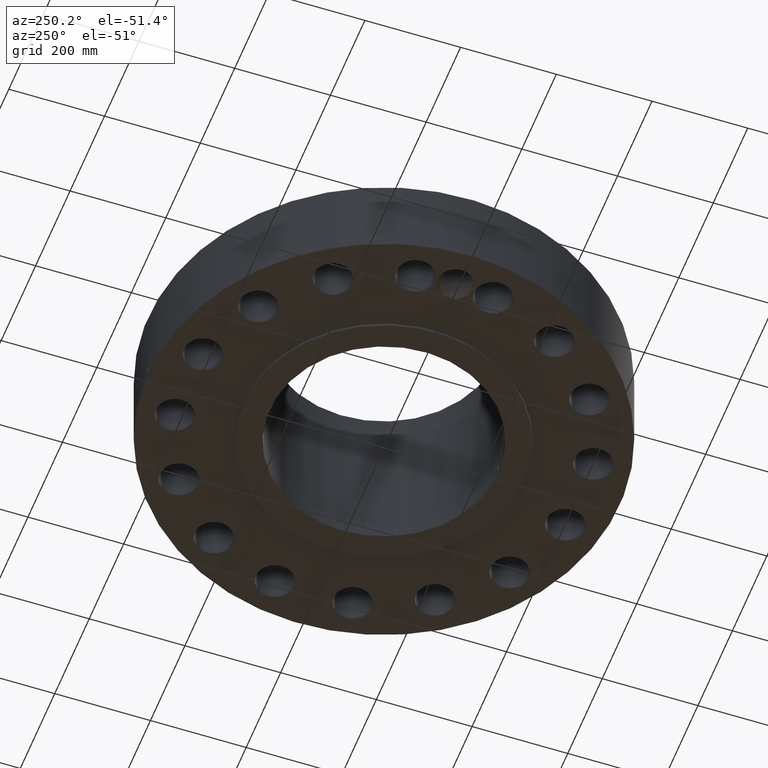
[diagram: clean part render]
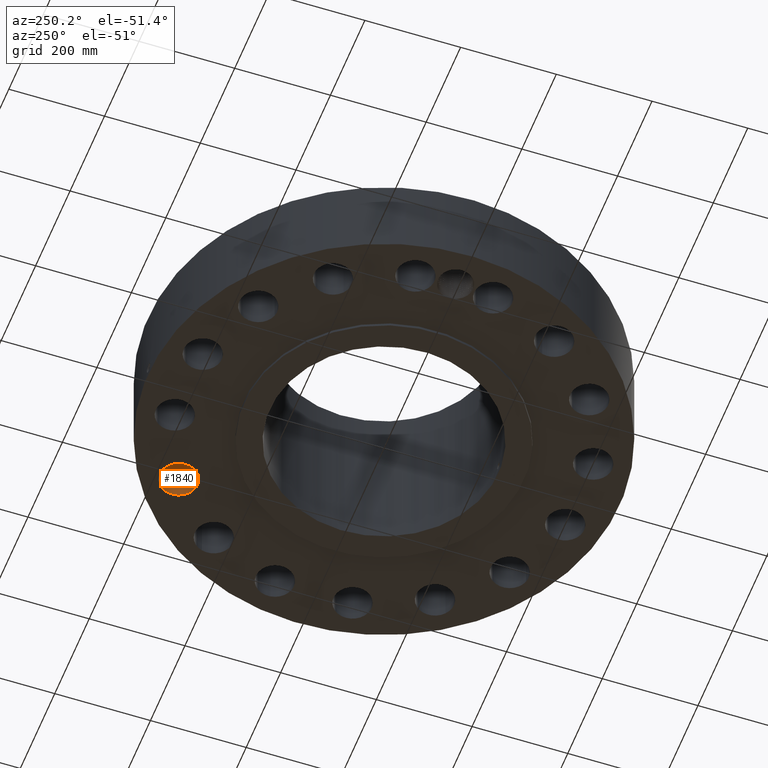
[diagram: same view with one face highlighted and labeled with its STEP entity id]
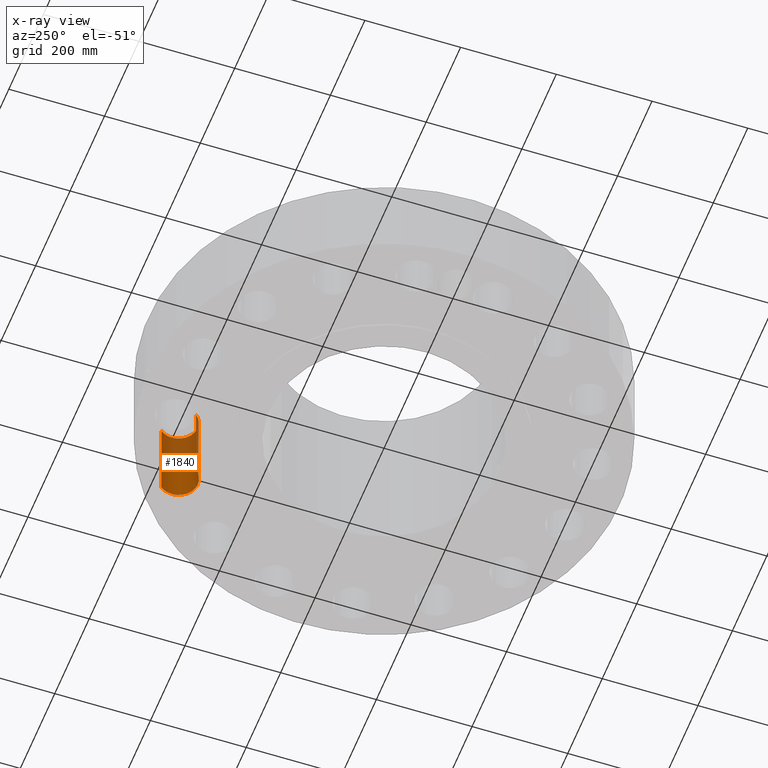
[diagram: x-ray of the same camera — body ghosted, the highlighted face saturated]
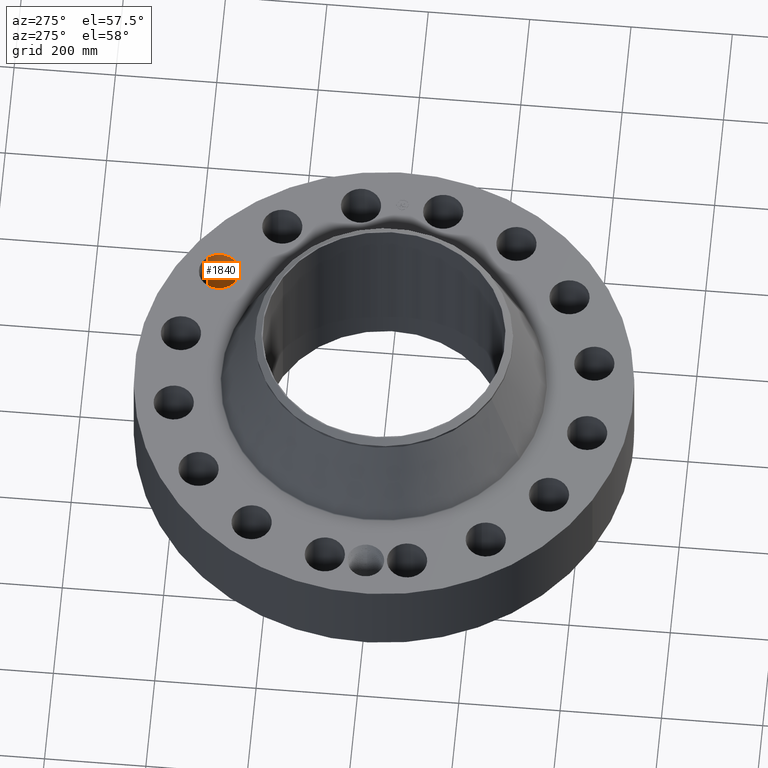
[diagram: same view with one face highlighted and labeled with its STEP entity id]
A machine part, auxiliary view. The second image highlights one B-rep face of the part: STEP entity #1840.
The next image is the same camera in x-ray: the body ghosted, the highlighted face saturated — about 32% of this face is hidden behind the body in this view.
A second angle (auxiliary view) of the same face is appended — the face is thin or edge-on in the first view.
In plain terms, the highlighted cylindrical surface (edge-blend (fillet) strip) has radius 39.624 mm, axis along (0, 0, -1).
Its self-contained STEP definition (entity closure, byte-faithful):
#503=AXIS2_PLACEMENT_3D('Circle Axis2P3D',#501,#502,$) ;
#973=AXIS2_PLACEMENT_3D('Circle Axis2P3D',#971,#972,$) ;
#1815=AXIS2_PLACEMENT_3D('Cylinder Axis2P3D',#1812,#1813,#1814) ;
#496=CARTESIAN_POINT('Vertex',(7.88258487659,12.6367076256,0.250000000001)) ;
#498=CARTESIAN_POINT('Vertex',(10.3123402549,14.5939221774,0.250000000001)) ;
#501=CARTESIAN_POINT('Axis2P3D Location',(9.09746256573,13.6153149015,0.250000000001)) ;
#971=CARTESIAN_POINT('Axis2P3D Location',(9.09746256573,13.6153149015,7.25000000003)) ;
#975=CARTESIAN_POINT('Vertex',(10.3123402549,14.5939221774,7.25000000003)) ;
#977=CARTESIAN_POINT('Vertex',(7.88258487659,12.6367076256,7.25000000003)) ;
#1812=CARTESIAN_POINT('Axis2P3D Location',(9.09746256573,13.6153149015,7.24606299215)) ;
#1817=CARTESIAN_POINT('Line Origine',(7.88258487659,12.6367076256,3.75000000001)) ;
#1822=CARTESIAN_POINT('Line Origine',(10.3123402549,14.5939221774,3.75000000001)) ;
#502=DIRECTION('Axis2P3D Direction',(0.,0.,-0.0393700787402)) ;
#972=DIRECTION('Axis2P3D Direction',(0.,0.,-0.0393700787402)) ;
#1813=DIRECTION('Axis2P3D Direction',(0.,0.,-0.0393700787402)) ;
#1814=DIRECTION('Axis2P3D XDirection',(0.030660147616,0.0246973368639,0.)) ;
#1818=DIRECTION('Vector Direction',(0.,0.,-0.0393700787402)) ;
#1823=DIRECTION('Vector Direction',(0.,0.,-0.0393700787402)) ;
#1819=VECTOR('Line Direction',#1818,0.0393700787402) ;
#1824=VECTOR('Line Direction',#1823,0.0393700787402) ;
#1835=ORIENTED_EDGE('',*,*,#1826,.F.) ;
#1836=ORIENTED_EDGE('',*,*,#505,.T.) ;
#1837=ORIENTED_EDGE('',*,*,#1821,.T.) ;
#1838=ORIENTED_EDGE('',*,*,#979,.F.) ;
#1840=ADVANCED_FACE('PartBody',(#1839),#1816,.F.) ;
#504=CIRCLE('generated circle',#503,1.56000000001) ;
#974=CIRCLE('generated circle',#973,1.56000000001) ;
#1816=CYLINDRICAL_SURFACE('generated cylinder',#1815,1.56000000001) ;
#505=EDGE_CURVE('',#499,#497,#504,.T.) ;
#979=EDGE_CURVE('',#976,#978,#974,.T.) ;
#1821=EDGE_CURVE('',#497,#978,#1820,.F.) ;
#1826=EDGE_CURVE('',#499,#976,#1825,.F.) ;
#1834=EDGE_LOOP('',(#1835,#1836,#1837,#1838)) ;
#1839=FACE_OUTER_BOUND('',#1834,.T.) ;
#1820=LINE('Line',#1817,#1819) ;
#1825=LINE('Line',#1822,#1824) ;
#497=VERTEX_POINT('',#496) ;
#499=VERTEX_POINT('',#498) ;
#976=VERTEX_POINT('',#975) ;
#978=VERTEX_POINT('',#977) ;